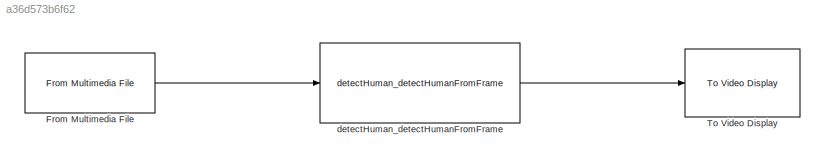
MODEL slx_a36d573b6f62
KIND model
CONFIG AbsTol = auto
CONFIG EnableMultiTasking = off
CONFIG FixedStep = 0.2
CONFIG InitFcn = coeffStds = [0.002995595096857,0.076600147330248,0.631288082601997,0.002600128777275,0.073641936476251,0.984567040148445];\ncoeffMeans = [-1.939450143265110e-04,1.557727430093527e-04,1.473991581706893,-1.909623131136531e-04,0.004474616468621,-1.378729416735388];\nIsize = single(zeros(227,227));
CONFIG MaxStep = auto
CONFIG MinStep = auto
CONFIG RelTol = 1e-3
CONFIG SampleTimeConstraint = Unconstrained
CONFIG SolverName = FixedStepAuto
CONFIG StartTime = 0.0
CONFIG StopTime = 20
BLOCK [Reference] From Multimedia File  REF=dspvision/From Multimedia File
  LibrarySourceBlock = dspsrcs4/From Multimedia File
  SourceBlock = dspvision/From Multimedia File
  SourceType = From Multimedia File
BLOCK [Reference] To Video Display  REF=visionsinks/To Video Display
  SourceBlock = visionsinks/To Video Display
  SourceType = To Video Display
BLOCK [Reference] detectHuman_detectHumanFromFrame  REF=HumanDetection/detectHuman_detectHumanFromFrame
  SourceBlock = HumanDetection/detectHuman_detectHumanFromFrame
  SourceType = detectHuman_detectHumanFromFrame
LINE From Multimedia File:1 -> detectHuman_detectHumanFromFrame:1
LINE detectHuman_detectHumanFromFrame:1 -> To Video Display:1
